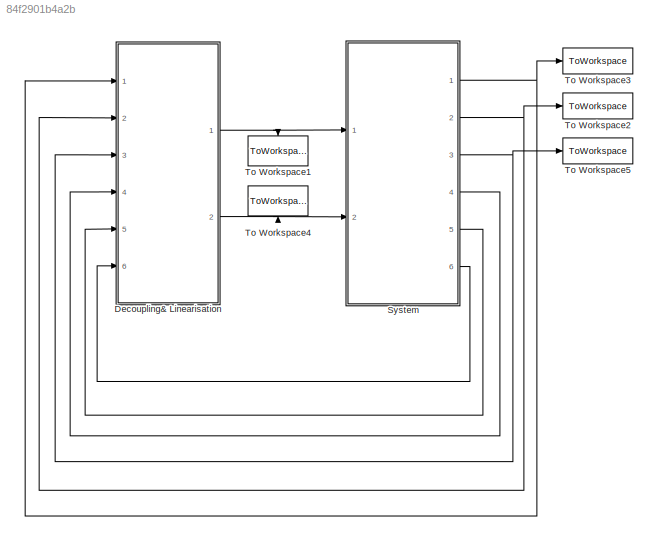
MODEL slx_84f2901b4a2b
KIND model
CONFIG AbsTol = auto
CONFIG EnableMultiTasking = off
CONFIG FixedStep = 0.0001
CONFIG MaxStep = auto
CONFIG MinStep = auto
CONFIG RelTol = 1e-3
CONFIG SampleTimeConstraint = Unconstrained
CONFIG Solver = ode1
CONFIG SolverName = ode1
CONFIG StartTime = 0.0
CONFIG StopTime = 20.0
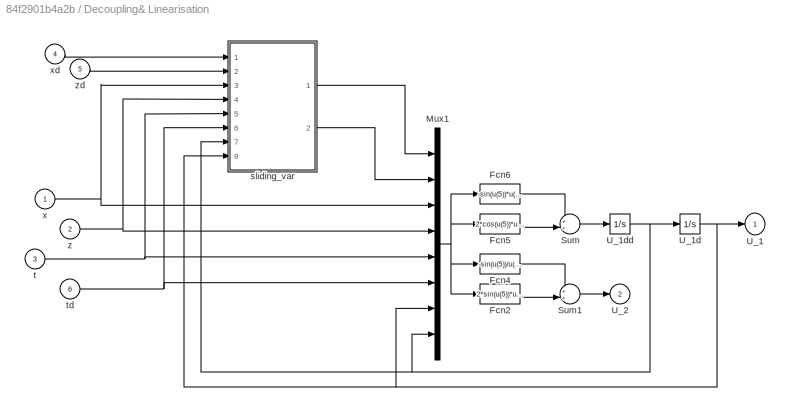
BLOCK [SubSystem] Decoupling& Linearisation
  Ports = [6, 2]
  RequestExecContextInheritance = off
  ShowPortLabels = SignalName
  Variant = off
BLOCK [Fcn] Decoupling& Linearisation/Fcn2
  Expr = 2*sin(u(5))*u(8)*u(6) +u(7)*cos(u(5))*u(6)^2
BLOCK [Fcn] Decoupling& Linearisation/Fcn4
  Expr = -sin(u(5))/u(7)*u(2)-cos(u(5))/u(7)*u(1)
BLOCK [Fcn] Decoupling& Linearisation/Fcn5
  Expr = 2*cos(u(5))*u(8)*u(6) -u(7)*sin(u(5))*u(6)^2
BLOCK [Fcn] Decoupling& Linearisation/Fcn6
  Expr = -sin(u(5))*u(1) +cos(u(5))*u(2)
BLOCK [Mux] Decoupling& Linearisation/Mux1
  DisplayOption = bar
  Inputs = 8
  Ports = [8, 1]
BLOCK [Sum] Decoupling& Linearisation/Sum
  IconShape = round
  InputSameDT = off
  Inputs = ++|
  OutDataTypeStr = Inherit: Inherit via internal rule
  Ports = [2, 1]
  SaturateOnIntegerOverflow = off
BLOCK [Sum] Decoupling& Linearisation/Sum1
  IconShape = round
  InputSameDT = off
  Inputs = ++|
  OutDataTypeStr = Inherit: Inherit via internal rule
  Ports = [2, 1]
  SaturateOnIntegerOverflow = off
BLOCK [Outport] Decoupling& Linearisation/U_1
  IconDisplay = Port number
BLOCK [Integrator] Decoupling& Linearisation/U_1d
  InitialCondition = 1
  Ports = [1, 1]
BLOCK [Integrator] Decoupling& Linearisation/U_1dd
  Ports = [1, 1]
BLOCK [Outport] Decoupling& Linearisation/U_2
  IconDisplay = Port number
  Port = 2
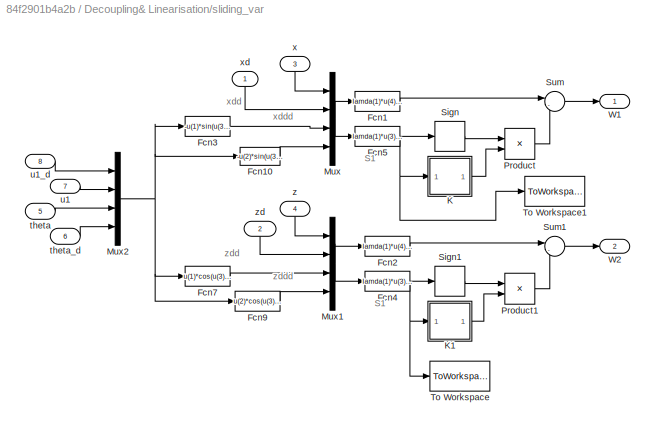
BLOCK [SubSystem] Decoupling& Linearisation/sliding_var
  Ports = [8, 2]
  RequestExecContextInheritance = off
  Variant = off
BLOCK [Fcn] Decoupling& Linearisation/sliding_var/Fcn1
  Expr = lamda(1)*u(4)+lamda(2)*u(3)+lamda(3)*u(2)
BLOCK [Fcn] Decoupling& Linearisation/sliding_var/Fcn10
  Expr = -u(2)*sin(u(3))-cos(u(3))*u(1)*u(4)
BLOCK [Fcn] Decoupling& Linearisation/sliding_var/Fcn2
  Expr = lamda(1)*u(4)+lamda(2)*u(3)+lamda(3)*u(2)
BLOCK [Fcn] Decoupling& Linearisation/sliding_var/Fcn3
  Expr = -u(1)*sin(u(3))
BLOCK [Fcn] Decoupling& Linearisation/sliding_var/Fcn4
  Expr = lamda(1)*u(3)+lamda(2)*u(2)+lamda(3)*u(1)+u(4)
BLOCK [Fcn] Decoupling& Linearisation/sliding_var/Fcn5
  Expr = lamda(1)*u(3)+lamda(2)*u(2)+lamda(3)*u(1)+u(4)
BLOCK [Fcn] Decoupling& Linearisation/sliding_var/Fcn7
  Expr = u(1)*cos(u(3))-1
BLOCK [Fcn] Decoupling& Linearisation/sliding_var/Fcn9
  Expr = u(2)*cos(u(3))-sin(u(3))*u(1)*u(4)
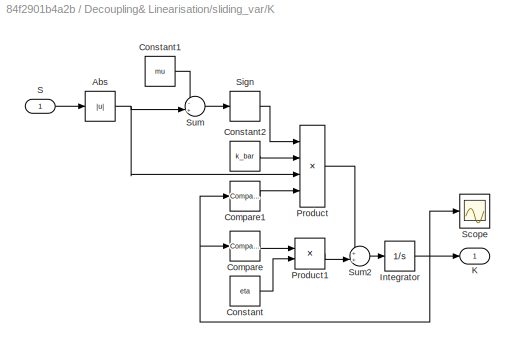
BLOCK [SubSystem] Decoupling& Linearisation/sliding_var/K
  Ports = [1, 1]
  RequestExecContextInheritance = off
  Variant = off
BLOCK [Abs] Decoupling& Linearisation/sliding_var/K/Abs
  SaturateOnIntegerOverflow = off
BLOCK [Reference] Decoupling& Linearisation/sliding_var/K/Compare  REF=simulink/Logic and Bit
Operations/Compare
To Constant
  Ports = [1, 1]
  SourceBlock = simulink/Logic and Bit\nOperations/Compare\nTo Constant
  SourceProductBaseCode = SL
  SourceProductName = Simulink
  SourceType = Compare To Constant
BLOCK [Reference] Decoupling& Linearisation/sliding_var/K/Compare1  REF=simulink/Logic and Bit
Operations/Compare
To Constant
  Ports = [1, 1]
  SourceBlock = simulink/Logic and Bit\nOperations/Compare\nTo Constant
  SourceProductBaseCode = SL
  SourceProductName = Simulink
  SourceType = Compare To Constant
BLOCK [Constant] Decoupling& Linearisation/sliding_var/K/Constant
  Value = eta
BLOCK [Constant] Decoupling& Linearisation/sliding_var/K/Constant1
  Value = mu
BLOCK [Constant] Decoupling& Linearisation/sliding_var/K/Constant2
  Value = k_bar
BLOCK [Integrator] Decoupling& Linearisation/sliding_var/K/Integrator
  InitialCondition = 10
  Ports = [1, 1]
BLOCK [Outport] Decoupling& Linearisation/sliding_var/K/K
  IconDisplay = Port number
BLOCK [Product] Decoupling& Linearisation/sliding_var/K/Product
  InputSameDT = off
  Inputs = 4
  OutDataTypeStr = Inherit: Inherit via internal rule
  Ports = [4, 1]
  RndMeth = Floor
  SaturateOnIntegerOverflow = off
BLOCK [Product] Decoupling& Linearisation/sliding_var/K/Product1
  InputSameDT = off
  OutDataTypeStr = Inherit: Inherit via internal rule
  Ports = [2, 1]
  RndMeth = Floor
  SaturateOnIntegerOverflow = off
BLOCK [Inport] Decoupling& Linearisation/sliding_var/K/S
  IconDisplay = Port number
BLOCK [Scope] Decoupling& Linearisation/sliding_var/K/Scope
  NumInputPorts = 1
  Ports = [1]
  ScopeSpecificationString = Simulink.scopes.TimeScopeBlockCfg('CurrentConfiguration', extmgr.ConfigurationSet(extmgr.Configuration('Core','General UI',true),extmgr.Configuration('Core','Source UI',true),extmgr.Configuration('Sources','WiredSimulink',true,'DataLoggingVariableName','ScopeData1'),extmgr.Configuration('Visuals','Time Domain',true,'SerializedDisplays',{struct('MinYLimReal','-390.2133','MaxYLimReal','3611.91974','...<+1431ch>
BLOCK [Signum] Decoupling& Linearisation/sliding_var/K/Sign
BLOCK [Sum] Decoupling& Linearisation/sliding_var/K/Sum
  IconShape = round
  InputSameDT = off
  Inputs = -+|
  OutDataTypeStr = Inherit: Inherit via internal rule
  Ports = [2, 1]
  SaturateOnIntegerOverflow = off
BLOCK [Sum] Decoupling& Linearisation/sliding_var/K/Sum2
  IconShape = round
  InputSameDT = off
  Inputs = ++|
  OutDataTypeStr = Inherit: Inherit via internal rule
  Ports = [2, 1]
  SaturateOnIntegerOverflow = off
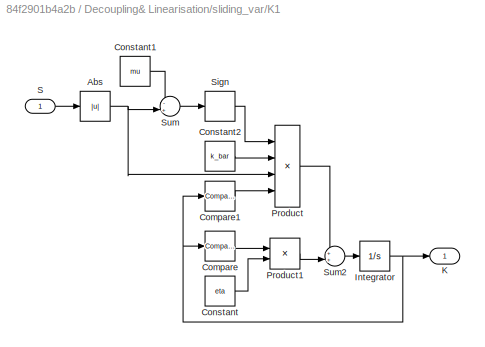
BLOCK [SubSystem] Decoupling& Linearisation/sliding_var/K1
  Ports = [1, 1]
  RequestExecContextInheritance = off
  Variant = off
BLOCK [Abs] Decoupling& Linearisation/sliding_var/K1/Abs
  SaturateOnIntegerOverflow = off
BLOCK [Reference] Decoupling& Linearisation/sliding_var/K1/Compare  REF=simulink/Logic and Bit
Operations/Compare
To Constant
  Ports = [1, 1]
  SourceBlock = simulink/Logic and Bit\nOperations/Compare\nTo Constant
  SourceProductBaseCode = SL
  SourceProductName = Simulink
  SourceType = Compare To Constant
BLOCK [Reference] Decoupling& Linearisation/sliding_var/K1/Compare1  REF=simulink/Logic and Bit
Operations/Compare
To Constant
  Ports = [1, 1]
  SourceBlock = simulink/Logic and Bit\nOperations/Compare\nTo Constant
  SourceProductBaseCode = SL
  SourceProductName = Simulink
  SourceType = Compare To Constant
BLOCK [Constant] Decoupling& Linearisation/sliding_var/K1/Constant
  Value = eta
BLOCK [Constant] Decoupling& Linearisation/sliding_var/K1/Constant1
  Value = mu
BLOCK [Constant] Decoupling& Linearisation/sliding_var/K1/Constant2
  Value = k_bar
BLOCK [Integrator] Decoupling& Linearisation/sliding_var/K1/Integrator
  Ports = [1, 1]
BLOCK [Outport] Decoupling& Linearisation/sliding_var/K1/K
  IconDisplay = Port number
BLOCK [Product] Decoupling& Linearisation/sliding_var/K1/Product
  InputSameDT = off
  Inputs = 4
  OutDataTypeStr = Inherit: Inherit via internal rule
  Ports = [4, 1]
  RndMeth = Floor
  SaturateOnIntegerOverflow = off
BLOCK [Product] Decoupling& Linearisation/sliding_var/K1/Product1
  InputSameDT = off
  OutDataTypeStr = Inherit: Inherit via internal rule
  Ports = [2, 1]
  RndMeth = Floor
  SaturateOnIntegerOverflow = off
BLOCK [Inport] Decoupling& Linearisation/sliding_var/K1/S
  IconDisplay = Port number
BLOCK [Signum] Decoupling& Linearisation/sliding_var/K1/Sign
BLOCK [Sum] Decoupling& Linearisation/sliding_var/K1/Sum
  IconShape = round
  InputSameDT = off
  Inputs = -+|
  OutDataTypeStr = Inherit: Inherit via internal rule
  Ports = [2, 1]
  SaturateOnIntegerOverflow = off
BLOCK [Sum] Decoupling& Linearisation/sliding_var/K1/Sum2
  IconShape = round
  InputSameDT = off
  Inputs = ++|
  OutDataTypeStr = Inherit: Inherit via internal rule
  Ports = [2, 1]
  SaturateOnIntegerOverflow = off
BLOCK [Mux] Decoupling& Linearisation/sliding_var/Mux
  DisplayOption = bar
  Ports = [4, 1]
BLOCK [Mux] Decoupling& Linearisation/sliding_var/Mux1
  DisplayOption = bar
  Ports = [4, 1]
BLOCK [Mux] Decoupling& Linearisation/sliding_var/Mux2
  DisplayOption = bar
  Ports = [4, 1]
BLOCK [Product] Decoupling& Linearisation/sliding_var/Product
  InputSameDT = off
  OutDataTypeStr = Inherit: Inherit via internal rule
  Ports = [2, 1]
  RndMeth = Floor
  SaturateOnIntegerOverflow = off
BLOCK [Product] Decoupling& Linearisation/sliding_var/Product1
  InputSameDT = off
  OutDataTypeStr = Inherit: Inherit via internal rule
  Ports = [2, 1]
  RndMeth = Floor
  SaturateOnIntegerOverflow = off
BLOCK [Signum] Decoupling& Linearisation/sliding_var/Sign
BLOCK [Signum] Decoupling& Linearisation/sliding_var/Sign1
BLOCK [Sum] Decoupling& Linearisation/sliding_var/Sum
  IconShape = round
  InputSameDT = off
  Inputs = |--
  OutDataTypeStr = Inherit: Inherit via internal rule
  Ports = [2, 1]
  SaturateOnIntegerOverflow = off
BLOCK [Sum] Decoupling& Linearisation/sliding_var/Sum1
  IconShape = round
  InputSameDT = off
  Inputs = |--
  OutDataTypeStr = Inherit: Inherit via internal rule
  Ports = [2, 1]
  SaturateOnIntegerOverflow = off
BLOCK [ToWorkspace] Decoupling& Linearisation/sliding_var/To Workspace
  FixptAsFi = on
  MaxDataPoints = inf
  Ports = [1]
  SampleTime = -1
  Save2DSignal = 3-D array (concatenate along third dimension)
  VariableName = S2
BLOCK [ToWorkspace] Decoupling& Linearisation/sliding_var/To Workspace1
  FixptAsFi = on
  MaxDataPoints = inf
  Ports = [1]
  SampleTime = -1
  Save2DSignal = 3-D array (concatenate along third dimension)
  VariableName = S1
BLOCK [Outport] Decoupling& Linearisation/sliding_var/W1
  IconDisplay = Port number
BLOCK [Outport] Decoupling& Linearisation/sliding_var/W2
  IconDisplay = Port number
  Port = 2
BLOCK [Inport] Decoupling& Linearisation/sliding_var/theta
  IconDisplay = Port number
  Port = 5
BLOCK [Inport] Decoupling& Linearisation/sliding_var/theta_d
  IconDisplay = Port number
  Port = 6
BLOCK [Inport] Decoupling& Linearisation/sliding_var/u1
  IconDisplay = Port number
  Port = 7
BLOCK [Inport] Decoupling& Linearisation/sliding_var/u1_d
  IconDisplay = Port number
  Port = 8
BLOCK [Inport] Decoupling& Linearisation/sliding_var/x
  IconDisplay = Port number
  Port = 3
BLOCK [Inport] Decoupling& Linearisation/sliding_var/xd
  IconDisplay = Port number
BLOCK [Inport] Decoupling& Linearisation/sliding_var/z
  IconDisplay = Port number
  Port = 4
BLOCK [Inport] Decoupling& Linearisation/sliding_var/zd
  IconDisplay = Port number
  Port = 2
BLOCK [Inport] Decoupling& Linearisation/t 
  IconDisplay = Port number
  Port = 3
BLOCK [Inport] Decoupling& Linearisation/td
  IconDisplay = Port number
  Port = 6
BLOCK [Inport] Decoupling& Linearisation/x
  IconDisplay = Port number
BLOCK [Inport] Decoupling& Linearisation/xd
  IconDisplay = Port number
  Port = 4
BLOCK [Inport] Decoupling& Linearisation/z
  IconDisplay = Port number
  Port = 2
BLOCK [Inport] Decoupling& Linearisation/zd
  IconDisplay = Port number
  Port = 5
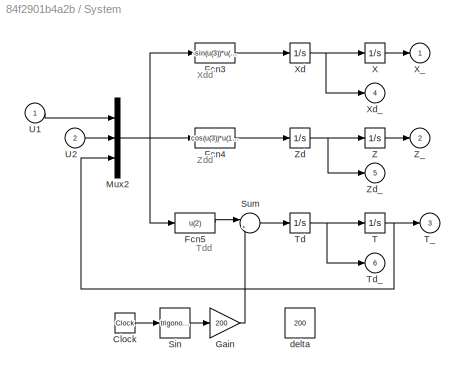
BLOCK [SubSystem] System
  Ports = [2, 6]
  RequestExecContextInheritance = off
  ShowPortLabels = SignalName
  Variant = off
BLOCK [Clock] System/Clock
BLOCK [Fcn] System/Fcn3
  Expr = -sin(u(3))*u(1)
BLOCK [Fcn] System/Fcn4
  Expr = cos(u(3))*u(1)-1
BLOCK [Fcn] System/Fcn5
  Expr = u(2)
BLOCK [Gain] System/Gain
  Gain = 200
  OutDataTypeStr = Inherit: Inherit via internal rule
  ParamDataTypeStr = Inherit: Inherit via internal rule
  SaturateOnIntegerOverflow = off
BLOCK [Mux] System/Mux2
  DisplayOption = bar
  Inputs = 3
  Ports = [3, 1]
BLOCK [Trigonometry] System/Sin
  Ports = [1, 1]
BLOCK [Sum] System/Sum
  IconShape = round
  InputSameDT = off
  Inputs = |++
  OutDataTypeStr = Inherit: Inherit via internal rule
  Ports = [2, 1]
  SaturateOnIntegerOverflow = off
BLOCK [Integrator] System/T
  InitialCondition = 1
  Ports = [1, 1]
BLOCK [Outport] System/T_
  IconDisplay = Port number
  Port = 3
BLOCK [Integrator] System/Td
  InitialCondition = 1
  Ports = [1, 1]
BLOCK [Outport] System/Td_
  IconDisplay = Port number
  Port = 6
BLOCK [Inport] System/U1 
  IconDisplay = Port number
BLOCK [Inport] System/U2
  IconDisplay = Port number
  Port = 2
BLOCK [Integrator] System/X
  InitialCondition = 1
  Ports = [1, 1]
BLOCK [Outport] System/X_
  IconDisplay = Port number
BLOCK [Integrator] System/Xd
  Ports = [1, 1]
BLOCK [Outport] System/Xd_
  IconDisplay = Port number
  Port = 4
BLOCK [Integrator] System/Z
  InitialCondition = 1
  Ports = [1, 1]
BLOCK [Outport] System/Z_ 
  IconDisplay = Port number
  Port = 2
BLOCK [Integrator] System/Zd
  Ports = [1, 1]
BLOCK [Outport] System/Zd_
  IconDisplay = Port number
  Port = 5
BLOCK [Constant] System/delta
  Commented = on
  Value = 200
BLOCK [ToWorkspace] To Workspace1
  MaxDataPoints = inf
  Ports = [1]
  SampleTime = -1
  VariableName = u1
BLOCK [ToWorkspace] To Workspace2
  MaxDataPoints = inf
  Ports = [1]
  SampleTime = -1
  VariableName = z
BLOCK [ToWorkspace] To Workspace3
  MaxDataPoints = inf
  Ports = [1]
  SampleTime = -1
  VariableName = x
BLOCK [ToWorkspace] To Workspace4
  MaxDataPoints = inf
  Ports = [1]
  SampleTime = -1
  VariableName = u2
BLOCK [ToWorkspace] To Workspace5
  MaxDataPoints = inf
  Ports = [1]
  SampleTime = -1
  VariableName = theta
ANNOTATION Decoupling& Linearisation/sliding_var: S1
ANNOTATION Decoupling& Linearisation/sliding_var: xdd
ANNOTATION Decoupling& Linearisation/sliding_var: xddd
ANNOTATION Decoupling& Linearisation/sliding_var: zdd
ANNOTATION Decoupling& Linearisation/sliding_var: zddd
ANNOTATION System: Tdd
ANNOTATION System: Xdd
ANNOTATION System: Zdd
LINE Decoupling& Linearisation/Fcn2:1 -> Decoupling& Linearisation/Sum1:2
LINE Decoupling& Linearisation/Fcn4:1 -> Decoupling& Linearisation/Sum1:1
LINE Decoupling& Linearisation/Fcn5:1 -> Decoupling& Linearisation/Sum:2
LINE Decoupling& Linearisation/Fcn6:1 -> Decoupling& Linearisation/Sum:1
NET Decoupling& Linearisation/Mux1:1 -> Decoupling& Linearisation/Fcn2:1, Decoupling& Linearisation/Fcn4:1, Decoupling& Linearisation/Fcn5:1, Decoupling& Linearisation/Fcn6:1
LINE Decoupling& Linearisation/Sum1:1 -> Decoupling& Linearisation/U_2:1
LINE Decoupling& Linearisation/Sum:1 -> Decoupling& Linearisation/U_1dd:1
NET Decoupling& Linearisation/U_1d:1 -> Decoupling& Linearisation/Mux1:7, Decoupling& Linearisation/U_1:1, Decoupling& Linearisation/sliding_var:8
NET Decoupling& Linearisation/U_1dd:1 -> Decoupling& Linearisation/Mux1:8, Decoupling& Linearisation/U_1d:1, Decoupling& Linearisation/sliding_var:7
LINE Decoupling& Linearisation/sliding_var/Fcn10:1 -> Decoupling& Linearisation/sliding_var/Mux:4
LINE Decoupling& Linearisation/sliding_var/Fcn1:1 -> Decoupling& Linearisation/sliding_var/Sum:1
LINE Decoupling& Linearisation/sliding_var/Fcn2:1 -> Decoupling& Linearisation/sliding_var/Sum1:1
LINE Decoupling& Linearisation/sliding_var/Fcn3:1 -> Decoupling& Linearisation/sliding_var/Mux:3
NET Decoupling& Linearisation/sliding_var/Fcn4:1 -> Decoupling& Linearisation/sliding_var/K1:1, Decoupling& Linearisation/sliding_var/Sign1:1, Decoupling& Linearisation/sliding_var/To Workspace:1
NET Decoupling& Linearisation/sliding_var/Fcn5:1 -> Decoupling& Linearisation/sliding_var/K:1, Decoupling& Linearisation/sliding_var/Sign:1, Decoupling& Linearisation/sliding_var/To Workspace1:1
LINE Decoupling& Linearisation/sliding_var/Fcn7:1 -> Decoupling& Linearisation/sliding_var/Mux1:3
LINE Decoupling& Linearisation/sliding_var/Fcn9:1 -> Decoupling& Linearisation/sliding_var/Mux1:4
NET Decoupling& Linearisation/sliding_var/K/Abs:1 -> Decoupling& Linearisation/sliding_var/K/Product:3, Decoupling& Linearisation/sliding_var/K/Sum:2
LINE Decoupling& Linearisation/sliding_var/K/Compare1:1 -> Decoupling& Linearisation/sliding_var/K/Product:4
LINE Decoupling& Linearisation/sliding_var/K/Compare:1 -> Decoupling& Linearisation/sliding_var/K/Product1:1
LINE Decoupling& Linearisation/sliding_var/K/Constant1:1 -> Decoupling& Linearisation/sliding_var/K/Sum:1
LINE Decoupling& Linearisation/sliding_var/K/Constant2:1 -> Decoupling& Linearisation/sliding_var/K/Product:2
LINE Decoupling& Linearisation/sliding_var/K/Constant:1 -> Decoupling& Linearisation/sliding_var/K/Product1:2
NET Decoupling& Linearisation/sliding_var/K/Integrator:1 -> Decoupling& Linearisation/sliding_var/K/Compare1:1, Decoupling& Linearisation/sliding_var/K/Compare:1, Decoupling& Linearisation/sliding_var/K/K:1, Decoupling& Linearisation/sliding_var/K/Scope:1
LINE Decoupling& Linearisation/sliding_var/K/Product1:1 -> Decoupling& Linearisation/sliding_var/K/Sum2:2
LINE Decoupling& Linearisation/sliding_var/K/Product:1 -> Decoupling& Linearisation/sliding_var/K/Sum2:1
LINE Decoupling& Linearisation/sliding_var/K/S:1 -> Decoupling& Linearisation/sliding_var/K/Abs:1
LINE Decoupling& Linearisation/sliding_var/K/Sign:1 -> Decoupling& Linearisation/sliding_var/K/Product:1
LINE Decoupling& Linearisation/sliding_var/K/Sum2:1 -> Decoupling& Linearisation/sliding_var/K/Integrator:1
LINE Decoupling& Linearisation/sliding_var/K/Sum:1 -> Decoupling& Linearisation/sliding_var/K/Sign:1
NET Decoupling& Linearisation/sliding_var/K1/Abs:1 -> Decoupling& Linearisation/sliding_var/K1/Product:3, Decoupling& Linearisation/sliding_var/K1/Sum:2
LINE Decoupling& Linearisation/sliding_var/K1/Compare1:1 -> Decoupling& Linearisation/sliding_var/K1/Product:4
LINE Decoupling& Linearisation/sliding_var/K1/Compare:1 -> Decoupling& Linearisation/sliding_var/K1/Product1:1
LINE Decoupling& Linearisation/sliding_var/K1/Constant1:1 -> Decoupling& Linearisation/sliding_var/K1/Sum:1
LINE Decoupling& Linearisation/sliding_var/K1/Constant2:1 -> Decoupling& Linearisation/sliding_var/K1/Product:2
LINE Decoupling& Linearisation/sliding_var/K1/Constant:1 -> Decoupling& Linearisation/sliding_var/K1/Product1:2
NET Decoupling& Linearisation/sliding_var/K1/Integrator:1 -> Decoupling& Linearisation/sliding_var/K1/Compare1:1, Decoupling& Linearisation/sliding_var/K1/Compare:1, Decoupling& Linearisation/sliding_var/K1/K:1
LINE Decoupling& Linearisation/sliding_var/K1/Product1:1 -> Decoupling& Linearisation/sliding_var/K1/Sum2:2
LINE Decoupling& Linearisation/sliding_var/K1/Product:1 -> Decoupling& Linearisation/sliding_var/K1/Sum2:1
LINE Decoupling& Linearisation/sliding_var/K1/S:1 -> Decoupling& Linearisation/sliding_var/K1/Abs:1
LINE Decoupling& Linearisation/sliding_var/K1/Sign:1 -> Decoupling& Linearisation/sliding_var/K1/Product:1
LINE Decoupling& Linearisation/sliding_var/K1/Sum2:1 -> Decoupling& Linearisation/sliding_var/K1/Integrator:1
LINE Decoupling& Linearisation/sliding_var/K1/Sum:1 -> Decoupling& Linearisation/sliding_var/K1/Sign:1
LINE Decoupling& Linearisation/sliding_var/K1:1 -> Decoupling& Linearisation/sliding_var/Product1:2
LINE Decoupling& Linearisation/sliding_var/K:1 -> Decoupling& Linearisation/sliding_var/Product:2
NET Decoupling& Linearisation/sliding_var/Mux1:1 -> Decoupling& Linearisation/sliding_var/Fcn2:1, Decoupling& Linearisation/sliding_var/Fcn4:1
NET Decoupling& Linearisation/sliding_var/Mux2:1 -> Decoupling& Linearisation/sliding_var/Fcn10:1, Decoupling& Linearisation/sliding_var/Fcn3:1, Decoupling& Linearisation/sliding_var/Fcn7:1, Decoupling& Linearisation/sliding_var/Fcn9:1
NET Decoupling& Linearisation/sliding_var/Mux:1 -> Decoupling& Linearisation/sliding_var/Fcn1:1, Decoupling& Linearisation/sliding_var/Fcn5:1
LINE Decoupling& Linearisation/sliding_var/Product1:1 -> Decoupling& Linearisation/sliding_var/Sum1:2
LINE Decoupling& Linearisation/sliding_var/Product:1 -> Decoupling& Linearisation/sliding_var/Sum:2
LINE Decoupling& Linearisation/sliding_var/Sign1:1 -> Decoupling& Linearisation/sliding_var/Product1:1
LINE Decoupling& Linearisation/sliding_var/Sign:1 -> Decoupling& Linearisation/sliding_var/Product:1
LINE Decoupling& Linearisation/sliding_var/Sum1:1 -> Decoupling& Linearisation/sliding_var/W2:1
LINE Decoupling& Linearisation/sliding_var/Sum:1 -> Decoupling& Linearisation/sliding_var/W1:1
LINE Decoupling& Linearisation/sliding_var/theta:1 -> Decoupling& Linearisation/sliding_var/Mux2:3
LINE Decoupling& Linearisation/sliding_var/theta_d:1 -> Decoupling& Linearisation/sliding_var/Mux2:4
LINE Decoupling& Linearisation/sliding_var/u1:1 -> Decoupling& Linearisation/sliding_var/Mux2:2
LINE Decoupling& Linearisation/sliding_var/u1_d:1 -> Decoupling& Linearisation/sliding_var/Mux2:1
LINE Decoupling& Linearisation/sliding_var/x:1 -> Decoupling& Linearisation/sliding_var/Mux:1
LINE Decoupling& Linearisation/sliding_var/xd:1 -> Decoupling& Linearisation/sliding_var/Mux:2
LINE Decoupling& Linearisation/sliding_var/z:1 -> Decoupling& Linearisation/sliding_var/Mux1:1
LINE Decoupling& Linearisation/sliding_var/zd:1 -> Decoupling& Linearisation/sliding_var/Mux1:2
LINE Decoupling& Linearisation/sliding_var:1 -> Decoupling& Linearisation/Mux1:1
LINE Decoupling& Linearisation/sliding_var:2 -> Decoupling& Linearisation/Mux1:2
NET Decoupling& Linearisation/t :1 -> Decoupling& Linearisation/Mux1:5, Decoupling& Linearisation/sliding_var:5
NET Decoupling& Linearisation/td:1 -> Decoupling& Linearisation/Mux1:6, Decoupling& Linearisation/sliding_var:6
NET Decoupling& Linearisation/x:1 -> Decoupling& Linearisation/Mux1:3, Decoupling& Linearisation/sliding_var:3
LINE Decoupling& Linearisation/xd:1 -> Decoupling& Linearisation/sliding_var:1
NET Decoupling& Linearisation/z:1 -> Decoupling& Linearisation/Mux1:4, Decoupling& Linearisation/sliding_var:4
LINE Decoupling& Linearisation/zd:1 -> Decoupling& Linearisation/sliding_var:2
NET Decoupling& Linearisation:1 -> System:1, To Workspace1:1
NET Decoupling& Linearisation:2 -> System:2, To Workspace4:1
LINE System/Clock:1 -> System/Sin:1
LINE System/Fcn3:1 -> System/Xd:1
LINE System/Fcn4:1 -> System/Zd:1
LINE System/Fcn5:1 -> System/Sum:1
LINE System/Gain:1 -> System/Sum:2
NET System/Mux2:1 -> System/Fcn3:1, System/Fcn4:1, System/Fcn5:1
LINE System/Sin:1 -> System/Gain:1
LINE System/Sum:1 -> System/Td:1
NET System/T:1 -> System/Mux2:3, System/T_:1
NET System/Td:1 -> System/T:1, System/Td_:1
LINE System/U1 :1 -> System/Mux2:1
LINE System/U2:1 -> System/Mux2:2
LINE System/X:1 -> System/X_:1
NET System/Xd:1 -> System/X:1, System/Xd_:1
LINE System/Z:1 -> System/Z_ :1
NET System/Zd:1 -> System/Z:1, System/Zd_:1
NET System:1 -> Decoupling& Linearisation:1, To Workspace3:1
NET System:2 -> Decoupling& Linearisation:2, To Workspace2:1
NET System:3 -> Decoupling& Linearisation:3, To Workspace5:1
LINE System:4 -> Decoupling& Linearisation:4
LINE System:5 -> Decoupling& Linearisation:5
LINE System:6 -> Decoupling& Linearisation:6
note: NET lines group one-source signal fan-out (src -> all destinations, sorted); 1:1 wires keep LINE
